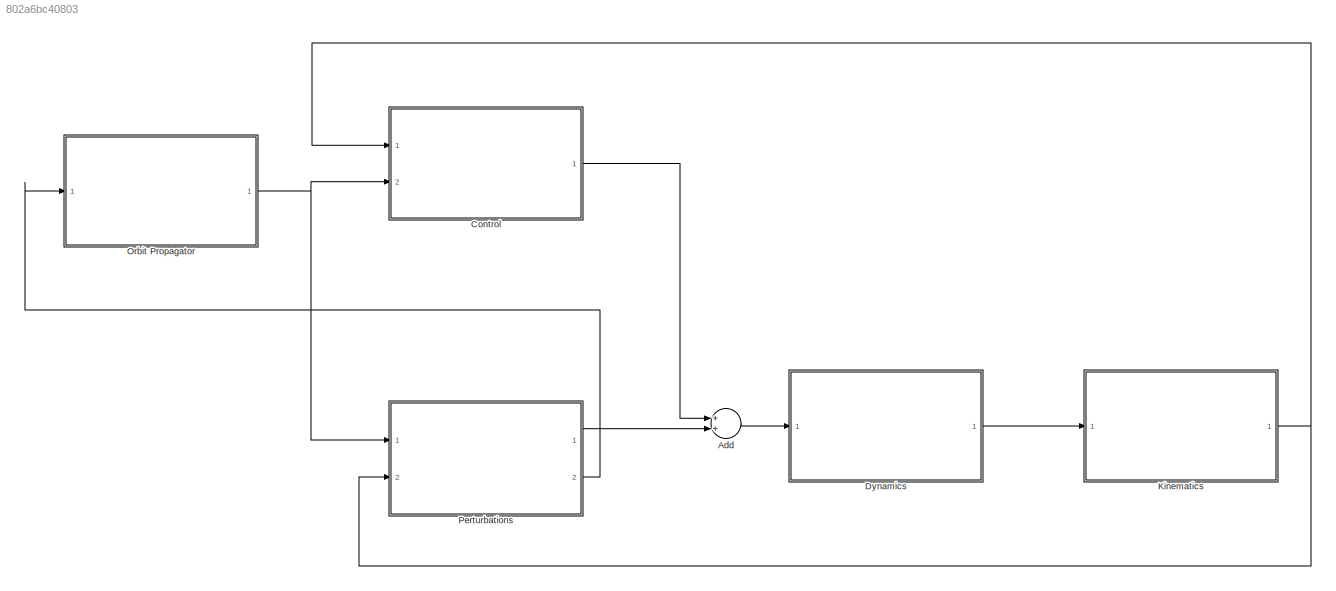
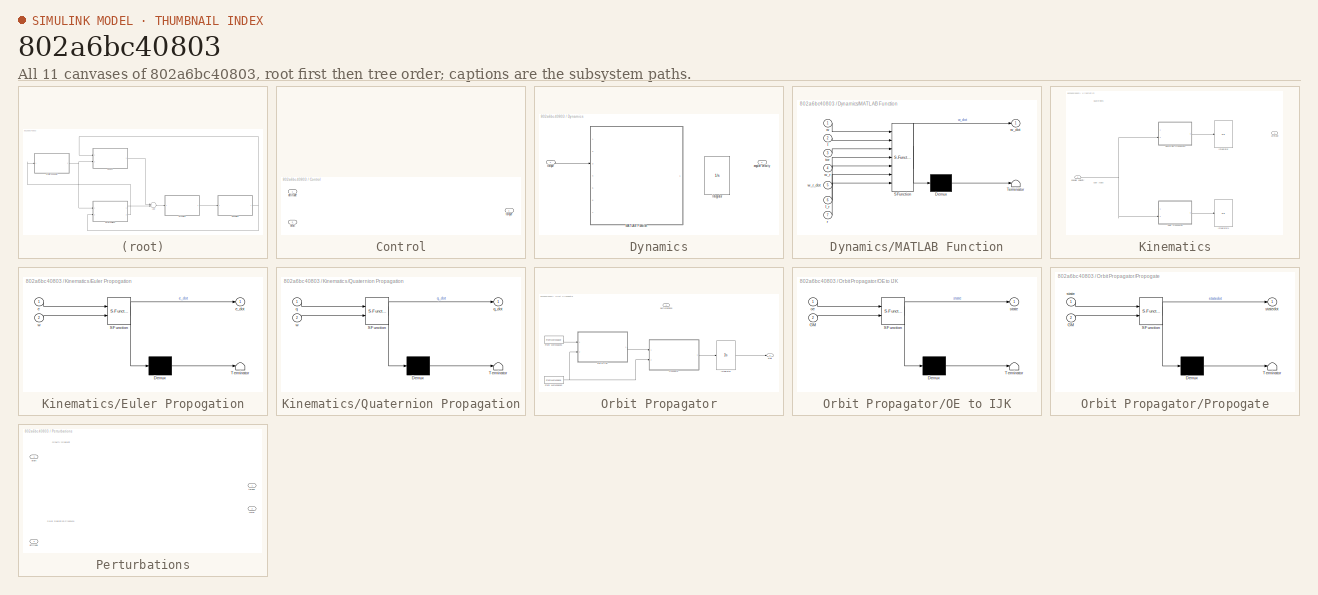
[diagram: thumbnail index - all 11 canvases of the model, root first then tree order]
MODEL slx_802a6bc40803
KIND model
CONFIG AbsTol = auto
CONFIG EnableMultiTasking = off
CONFIG FixedStep = auto
CONFIG MaxStep = auto
CONFIG MinStep = auto
CONFIG RelTol = 1e-3
CONFIG SampleTimeConstraint = Unconstrained
CONFIG Solver = VariableStepAuto
CONFIG SolverName = VariableStepAuto
CONFIG StartTime = 0.0
CONFIG StopTime = 600
BLOCK [Sum] Add
  InputSameDT = off
  OutDataTypeStr = Inherit: Inherit via internal rule
  Ports = [2, 1]
  SaturateOnIntegerOverflow = off
BLOCK [SubSystem] Control
  Ports = [2, 1]
  RequestExecContextInheritance = off
BLOCK [Inport] Control/attitude
  IconDisplay = Port number
BLOCK [Inport] Control/orbit
  IconDisplay = Port number
  Port = 2
BLOCK [Outport] Control/torque
  IconDisplay = Port number
BLOCK [SubSystem] Dynamics
  Ports = [1, 1]
  RequestExecContextInheritance = off
BLOCK [Integrator] Dynamics/Integrator
  Ports = [1, 1]
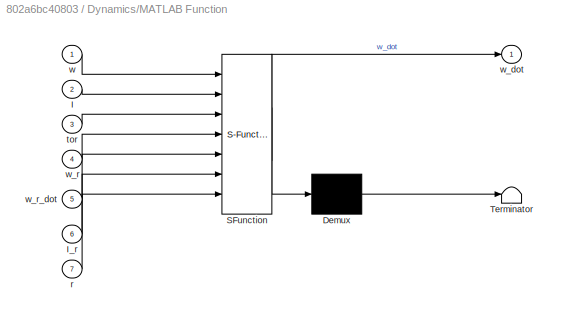
BLOCK [SubSystem] Dynamics/MATLAB Function
  ErrorFcn = Stateflow.Translate.translate
  PermitHierarchicalResolution = ExplicitOnly
  Ports = [7, 1]
  RequestExecContextInheritance = off
  SFBlockType = MATLAB Function
  TreatAsAtomicUnit = on
BLOCK [Demux] Dynamics/MATLAB Function/ Demux 
  Outputs = 1
  Ports = [1, 1]
BLOCK [S-Function] Dynamics/MATLAB Function/ SFunction 
  EnableBusSupport = off
  FunctionName = sf_sfun
  PortCounts = [7 2]
  Ports = [7, 2]
  SFcnIsStateOwnerBlock = off
  SFunctionDeploymentMode = off
  Tag = Stateflow S-Function ADCS 2
BLOCK [Terminator] Dynamics/MATLAB Function/ Terminator 
BLOCK [Inport] Dynamics/MATLAB Function/I
  IconDisplay = Port number
  Port = 2
BLOCK [Inport] Dynamics/MATLAB Function/I_r
  IconDisplay = Port number
  Port = 6
BLOCK [Inport] Dynamics/MATLAB Function/r
  IconDisplay = Port number
  Port = 7
BLOCK [Inport] Dynamics/MATLAB Function/tor
  IconDisplay = Port number
  Port = 3
BLOCK [Inport] Dynamics/MATLAB Function/w
  IconDisplay = Port number
BLOCK [Outport] Dynamics/MATLAB Function/w_dot
  IconDisplay = Port number
BLOCK [Inport] Dynamics/MATLAB Function/w_r
  IconDisplay = Port number
  Port = 4
BLOCK [Inport] Dynamics/MATLAB Function/w_r_dot
  IconDisplay = Port number
  Port = 5
BLOCK [Outport] Dynamics/angular velocity
  IconDisplay = Port number
BLOCK [Inport] Dynamics/torque
  IconDisplay = Port number
BLOCK [SubSystem] Kinematics
  Ports = [1, 1]
  RequestExecContextInheritance = off
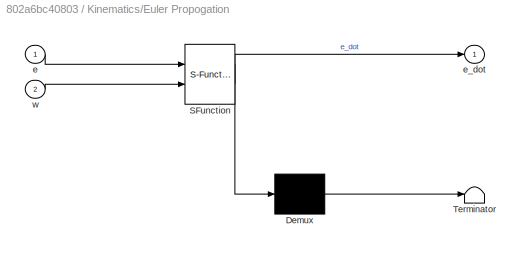
BLOCK [SubSystem] Kinematics/Euler Propogation
  ErrorFcn = Stateflow.Translate.translate
  PermitHierarchicalResolution = ExplicitOnly
  Ports = [2, 1]
  RequestExecContextInheritance = off
  SFBlockType = MATLAB Function
  TreatAsAtomicUnit = on
BLOCK [Demux] Kinematics/Euler Propogation/ Demux 
  Outputs = 1
  Ports = [1, 1]
BLOCK [S-Function] Kinematics/Euler Propogation/ SFunction 
  EnableBusSupport = off
  FunctionName = sf_sfun
  PortCounts = [2 2]
  Ports = [2, 2]
  SFcnIsStateOwnerBlock = off
  SFunctionDeploymentMode = off
  Tag = Stateflow S-Function ADCS 1
BLOCK [Terminator] Kinematics/Euler Propogation/ Terminator 
BLOCK [Inport] Kinematics/Euler Propogation/e
  IconDisplay = Port number
BLOCK [Outport] Kinematics/Euler Propogation/e_dot
  IconDisplay = Port number
BLOCK [Inport] Kinematics/Euler Propogation/w
  IconDisplay = Port number
  Port = 2
BLOCK [Integrator] Kinematics/Integrator
  Ports = [1, 1]
BLOCK [Integrator] Kinematics/Integrator1
  Ports = [1, 1]
BLOCK [SubSystem] Kinematics/Quaternion Propagation
  ErrorFcn = Stateflow.Translate.translate
  PermitHierarchicalResolution = ExplicitOnly
  Ports = [2, 1]
  RequestExecContextInheritance = off
  SFBlockType = MATLAB Function
  TreatAsAtomicUnit = on
BLOCK [Demux] Kinematics/Quaternion Propagation/ Demux 
  Outputs = 1
  Ports = [1, 1]
BLOCK [S-Function] Kinematics/Quaternion Propagation/ SFunction 
  EnableBusSupport = off
  FunctionName = sf_sfun
  PortCounts = [2 2]
  Ports = [2, 2]
  SFcnIsStateOwnerBlock = off
  SFunctionDeploymentMode = off
  Tag = Stateflow S-Function ADCS 4
BLOCK [Terminator] Kinematics/Quaternion Propagation/ Terminator 
BLOCK [Inport] Kinematics/Quaternion Propagation/q
  IconDisplay = Port number
BLOCK [Outport] Kinematics/Quaternion Propagation/q_dot
  IconDisplay = Port number
BLOCK [Inport] Kinematics/Quaternion Propagation/w
  IconDisplay = Port number
  Port = 2
BLOCK [Inport] Kinematics/angular velocity
  IconDisplay = Port number
BLOCK [Outport] Kinematics/attitude
  IconDisplay = Port number
BLOCK [SubSystem] Orbit Propagator
  Ports = [1, 1]
  RequestExecContextInheritance = off
BLOCK [FromWorkspace] Orbit Propagator/From Workspace1
  SampleTime = 0
  VariableName = oe_initial
  ZeroCross = on
BLOCK [FromWorkspace] Orbit Propagator/From Workspace2
  SampleTime = 0
  VariableName = GM_Moon
  ZeroCross = on
BLOCK [Integrator] Orbit Propagator/Integrator
  Ports = [1, 1]
BLOCK [SubSystem] Orbit Propagator/OE to IJK
  ErrorFcn = Stateflow.Translate.translate
  PermitHierarchicalResolution = ExplicitOnly
  Ports = [2, 1]
  RequestExecContextInheritance = off
  SFBlockType = MATLAB Function
  TreatAsAtomicUnit = on
BLOCK [Demux] Orbit Propagator/OE to IJK/ Demux 
  Outputs = 1
  Ports = [1, 1]
BLOCK [S-Function] Orbit Propagator/OE to IJK/ SFunction 
  EnableBusSupport = off
  FunctionName = sf_sfun
  PortCounts = [2 2]
  Ports = [2, 2]
  SFcnIsStateOwnerBlock = off
  SFunctionDeploymentMode = off
  Tag = Stateflow S-Function ADCS 5
BLOCK [Terminator] Orbit Propagator/OE to IJK/ Terminator 
BLOCK [Inport] Orbit Propagator/OE to IJK/GM
  IconDisplay = Port number
  Port = 2
BLOCK [Inport] Orbit Propagator/OE to IJK/oe
  IconDisplay = Port number
BLOCK [Outport] Orbit Propagator/OE to IJK/state
  IconDisplay = Port number
BLOCK [SubSystem] Orbit Propagator/Propogate
  ErrorFcn = Stateflow.Translate.translate
  PermitHierarchicalResolution = ExplicitOnly
  Ports = [2, 1]
  RequestExecContextInheritance = off
  SFBlockType = MATLAB Function
  TreatAsAtomicUnit = on
BLOCK [Demux] Orbit Propagator/Propogate/ Demux 
  Outputs = 1
  Ports = [1, 1]
BLOCK [S-Function] Orbit Propagator/Propogate/ SFunction 
  EnableBusSupport = off
  FunctionName = sf_sfun
  PortCounts = [2 2]
  Ports = [2, 2]
  SFcnIsStateOwnerBlock = off
  SFunctionDeploymentMode = off
  Tag = Stateflow S-Function ADCS 3
BLOCK [Terminator] Orbit Propagator/Propogate/ Terminator 
BLOCK [Inport] Orbit Propagator/Propogate/GM
  IconDisplay = Port number
  Port = 2
BLOCK [Inport] Orbit Propagator/Propogate/state
  IconDisplay = Port number
BLOCK [Outport] Orbit Propagator/Propogate/statedot
  IconDisplay = Port number
BLOCK [Outport] Orbit Propagator/orbit
  IconDisplay = Port number
BLOCK [Inport] Orbit Propagator/perturbations
  IconDisplay = Port number
BLOCK [SubSystem] Perturbations
  Ports = [2, 2]
  RequestExecContextInheritance = off
BLOCK [Inport] Perturbations/attitude
  IconDisplay = Port number
  Port = 2
BLOCK [Outport] Perturbations/force
  IconDisplay = Port number
  Port = 2
BLOCK [Inport] Perturbations/orbit
  IconDisplay = Port number
BLOCK [Outport] Perturbations/torque
  IconDisplay = Port number
ANNOTATION Kinematics: Euler Angles
ANNOTATION Kinematics: Quaternions
ANNOTATION Perturbations: Gravity Gradient
ANNOTATION Perturbations: Solar Radiation Pressure
LINE Add:1 -> Dynamics:1
LINE Control:1 -> Add:1
LINE Dynamics/torque:1 -> Dynamics/MATLAB Function:3
LINE Dynamics:1 -> Kinematics:1
LINE Kinematics/Euler Propogation:1 -> Kinematics/Integrator1:1
LINE Kinematics/Quaternion Propagation:1 -> Kinematics/Integrator:1
NET Kinematics/angular velocity:1 -> Kinematics/Euler Propogation:2, Kinematics/Quaternion Propagation:2
NET Kinematics:1 -> Control:1, Perturbations:2
LINE Orbit Propagator/From Workspace1:1 -> Orbit Propagator/OE to IJK:1
NET Orbit Propagator/From Workspace2:1 -> Orbit Propagator/OE to IJK:2, Orbit Propagator/Propogate:2
LINE Orbit Propagator/Integrator:1 -> Orbit Propagator/orbit:1
LINE Orbit Propagator/OE to IJK:1 -> Orbit Propagator/Propogate:1
LINE Orbit Propagator/Propogate:1 -> Orbit Propagator/Integrator:1
NET Orbit Propagator:1 -> Control:2, Perturbations:1
LINE Perturbations:1 -> Add:2
LINE Perturbations:2 -> Orbit Propagator:1
note: NET lines group one-source signal fan-out (src -> all destinations, sorted); 1:1 wires keep LINE
CHART Kinematics/Euler Propogation states=1 transitions=1
  STATE_LABEL 'eML_blk_kernel()'
  STATE_LABEL "SCRIPT:\nfunction e_dot   = calc_e_dot( e, w )\n%INPUT: euler angles, angular velocity\n%OUTPUT: rate of change of euler angles\n%propagate actual dynamics\n    tan_the = tan(e(2));\n    if(abs(tan_the) > 300) %make sure tan(theta) is well defined\n        tan_the = 300*sign(tan_the);\n        disp('tan x')\n    end\n    cos_the = cos(e(2));\n    if(abs(cos_the) < 10^-4) %make sure cos(theta) is well defined...<+244ch>"
CHART Dynamics/MATLAB Function states=1 transitions=1
  STATE_LABEL 'eML_blk_kernel()'
  STATE_LABEL 'SCRIPT:\nfunction w_dot = calc_w_dot(w, I, tor, w_r, w_r_dot, I_r, r)\n    %w_dot without rotor\n    w_dot(1, 1) = (tor(1) - (I(3,3)-I(2,2))*w(2)*w(3))/I(1,1);\n    w_dot(2, 1) = (tor(2) - (I(1,1)-I(3,3))*w(3)*w(1))/I(2,2);\n    w_dot(3, 1) = (tor(3) - (I(2,2)-I(1,1))*w(1)*w(2))/I(3,3);\n    \n    %w_dot with rotor, assume rotor speed is constant or w_r_dot is known\n    wrx = I_r*w_r_dot*r(1) + I_r*w_r*(...<+361ch>'
CHART Orbit Propagator/Propogate states=1 transitions=1
  STATE_LABEL 'eML_blk_kernel()'
  STATE_LABEL 'SCRIPT:\nfunction statedot = accelPointMass(state, GM)\nstatedot = zeros(6,1);\nstatedot(1:3) = state(4:6);\nstatedot(4:6) = -GM*state(1:3)./norm(state(1:3))^3;\nend'
CHART Kinematics/Quaternion Propagation states=1 transitions=1
  STATE_LABEL 'eML_blk_kernel()'
  STATE_LABEL "SCRIPT:\nfunction q_dot = calc_q_dot(q, w) \n%v1, not working so well\n%     eta=q(1);\n%     e1 =q(2);\n%     e2 =q(3);\n%     e3 =q(4);\n%     e=[e1;e2;e3];   %euler axis\n%     eta_dot=-1/2*e'*w;\n%     e_dot= 1/2*(eta*eye(3)+Skew(e))*w; %euler angle\n%     q_dot=[eta_dot; e_dot];\n\n%v2, try DAmico's notes\nwx = w(1); wy = w(2); wz = w(3);\nOMEGA = [   0,    wz, -1*wy, wx;\n        -1*wz,     0,    wx, wy;\n ...<+90ch>"
CHART Orbit Propagator/OE to IJK states=1 transitions=1
  STATE_LABEL 'eML_blk_kernel()'
  STATE_LABEL 'SCRIPT:\nfunction state = kep2rv(oe, GM)\n    % Function converts orbital elements to [r,v]. All angles should be in ...\n    %       [rad]. oe = [a,e,i,Omega,omega,nu]\n    \n    %Parsing Inputs:\n    a = oe(1);\n    e = oe(2);\n    inc = oe(3);\n    raan = oe(4);\n    arg = oe(5);\n    nu = oe(6);\n    \n    % Parameters\n    T = 2*pi*sqrt((a^3)/(GM)); %[s]\n    n = 2*pi/T; %[rad/s]\n    \n    % Rotation matrix ...<+695ch>'
